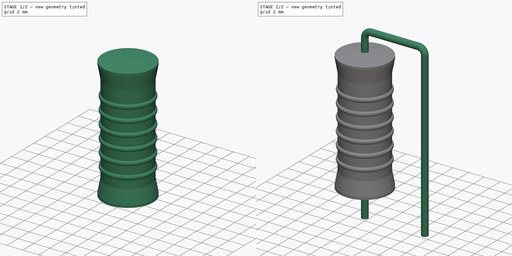
[diagram: build sequence overview — one tinted view per stage of 2, left to right]
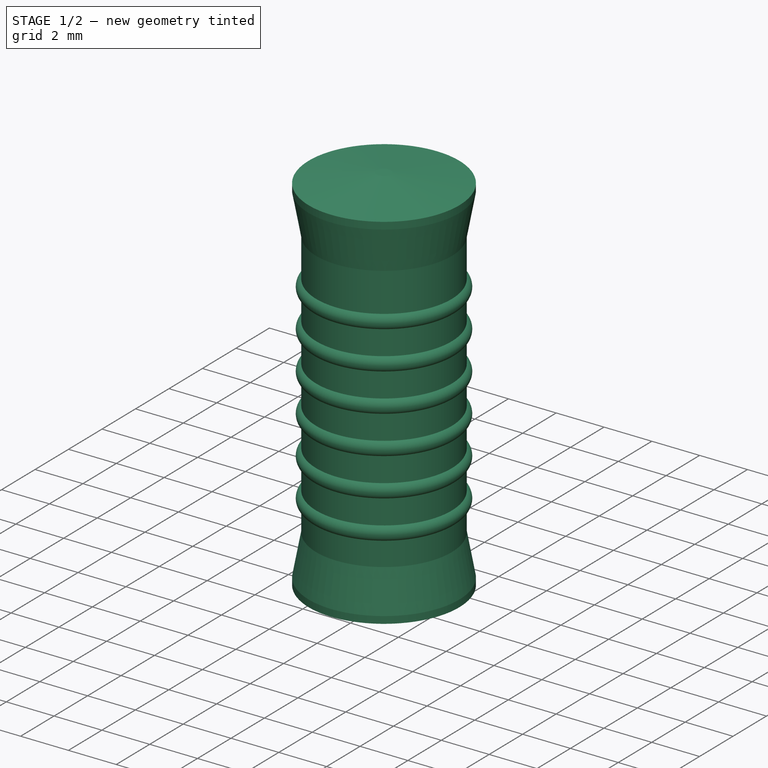
[diagram: stage 1 of 2 — iso view after this stage's code; geometry added in this stage tinted green]
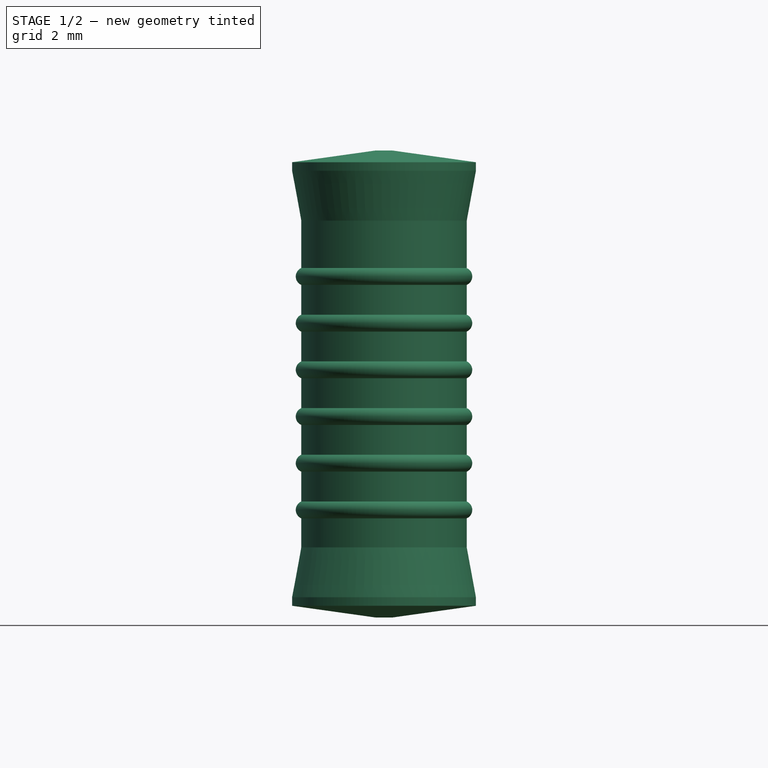
[diagram: stage 1 of 2 — front view after this stage's code; geometry added in this stage tinted green]
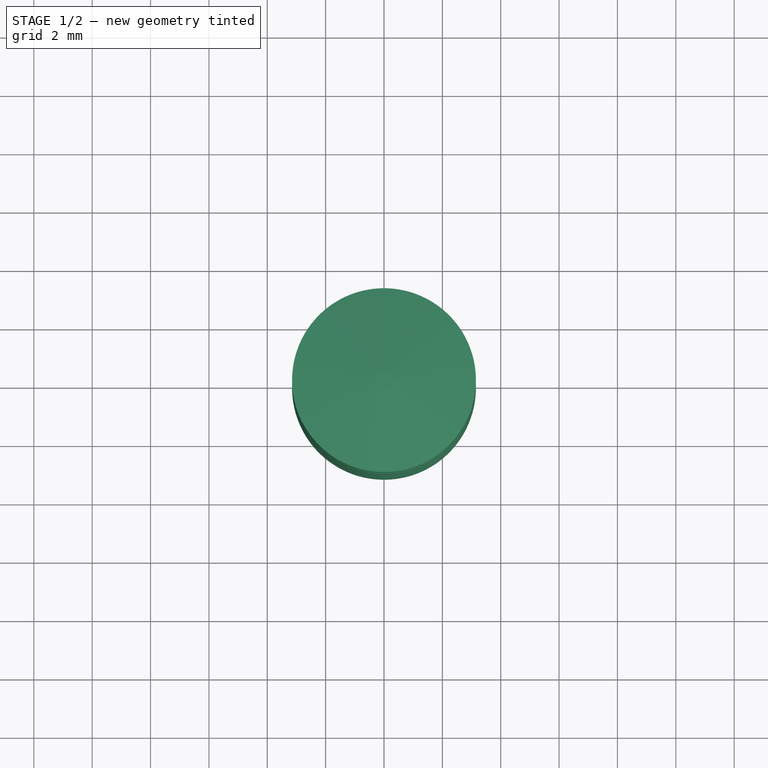
[diagram: stage 1 of 2 — top view after this stage's code; geometry added in this stage tinted green]
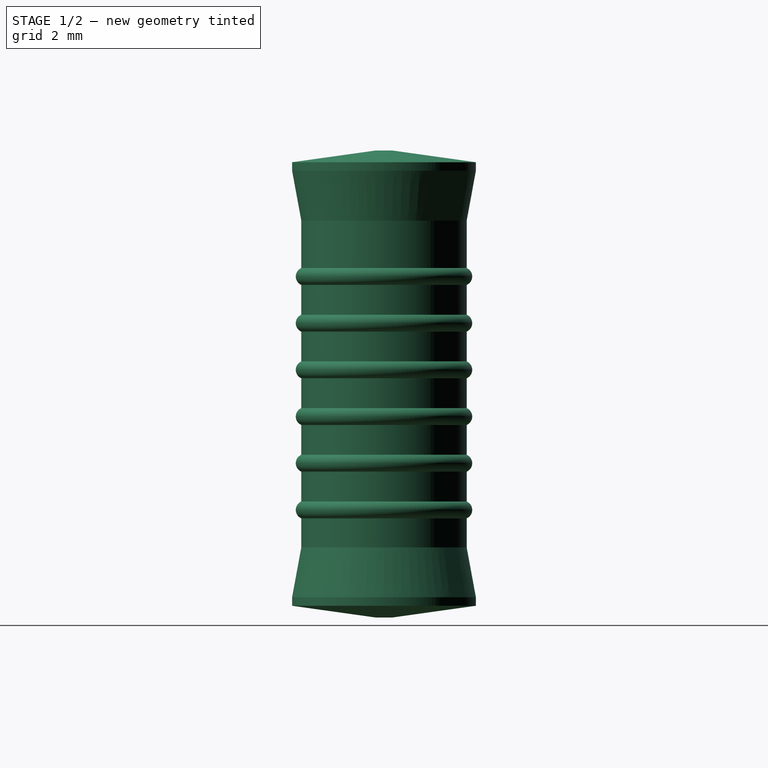
[diagram: stage 1 of 2 — right view after this stage's code; geometry added in this stage tinted green]
FCSTD DOCUMENT  (FreeCAD 0.16R6712 (Git))
Label: L_Axial_L16.0mm_D6.3mm_P7.62mm_Vertical_Fastron_VHBCC
License: All rights reserved
LicenseURL: http://en.wikipedia.org/wiki/All_rights_reserved
objects: Sketcher::SketchObject×4, PartDesign::Revolution×2, Spreadsheet::Sheet×1, Part::Sweep×1, Part::MultiFuse×1
note: 10 computed .brp shape members not serialized (recipe doc carries the construction recipe); baked Part::Feature solids carry a one-line shape summary decoded from their .brp

FEATURE [Sketcher::SketchObject] Sketch002
  Placement = pos=(0,0,0) rot=(1,0,0;1.5708rad)
  expr: Constraints[8] = 0.1
  expr: Constraints[13] = 0.15 * dimensions.L
  expr: Constraints[12] = dimensions.d * 0.45
  expr: Constraints[7] = dimensions.L
  expr: Constraints[21] = 0.025 * dimensions.L
  expr: Constraints[20] = 0.025 * dimensions.L
  expr: Constraints[11] = dimensions.L * 0.7
  expr: Constraints[9] = dimensions.d_wire / 2 * 0.75
  expr: Constraints[17] = dimensions.d / 2
  sketch-geometry (10):
    g0: LineSegment StartX=0 StartY=0.1 StartZ=0 EndX=0 EndY=16.1 EndZ=0
    g1: LineSegment StartX=0 StartY=16.1 StartZ=0 EndX=0.3 EndY=16.1 EndZ=0
    g2: LineSegment StartX=0 StartY=0.1 StartZ=0 EndX=0.3 EndY=0.1 EndZ=0
    g3: LineSegment StartX=2.835 StartY=13.7 StartZ=0 EndX=2.835 EndY=2.5 EndZ=0
    g4: LineSegment StartX=3.15 StartY=15.4075 StartZ=0 EndX=3.15 EndY=15.7 EndZ=0
    g5: LineSegment StartX=3.15 StartY=0.7925 StartZ=0 EndX=3.15 EndY=0.5 EndZ=0
    g6: LineSegment StartX=0.3 StartY=16.1 StartZ=0 EndX=3.15 EndY=15.7 EndZ=0
    g7: LineSegment StartX=0.3 StartY=0.1 StartZ=0 EndX=3.15 EndY=0.5 EndZ=0
    g8: LineSegment StartX=3.15 StartY=0.7925 StartZ=0 EndX=2.835 EndY=2.5 EndZ=0
    g9: LineSegment StartX=2.835 StartY=13.7 StartZ=0 EndX=3.15 EndY=15.4075 EndZ=0
  constraints (30):
    c: PointOnObject(g0,g-2)
    c: PointOnObject(g0,g-2)
    c: Coincident(g1,g0)
    c: Horizontal(g1)
    c: Coincident(g2,g0)
    c: Horizontal(g2)
    c: DistanceX(g2,g1) = 0
    c: DistanceY(g0,g0) = 16
    c: DistanceY(g-1,g0) = 0.1
    c: DistanceX(g1,g1) = 0.3
    c: Vertical(g3)
    c: DistanceY(g3,g3) = 11.2
    c: DistanceX(g0,g3) = 2.835
    c: DistanceY(g2,g3) = 2.4
    c: Vertical(g4)
    c: Vertical(g5)
    c: Equal(g5,g4)
    c: DistanceX(g0,g5) = 3.15
    c: DistanceY(g5,g5) = 0.2925
    c: DistanceX(g5,g4) = 0
    c: DistanceY(g0,g5) = 0.4
    c: DistanceY(g4,g1) = 0.4
    c: Coincident(g6,g1)
    c: Coincident(g6,g4)
    c: Coincident(g7,g2)
    c: Coincident(g7,g5)
    c: Coincident(g8,g5)
    c: Coincident(g8,g3)
    c: Coincident(g9,g3)
    c: Coincident(g9,g4)
FEATURE [PartDesign::Revolution] Revolution
  Angle = 360
  Axis = (0,0,1)
  Base = (0,0,0)
  Placement = pos=(0,0,0) rot=(1,0,0;1.5708rad)
  ReferenceAxis = -> Sketch002 [V_Axis]
  Reversed = true
  Sketch = -> Sketch002
FEATURE [Sketcher::SketchObject] Sketch003
  Placement = pos=(0,0,0) rot=(1,0,0;1.5708rad)
  expr: Constraints[1] = 0.1 + 0.15 * dimensions.L
  expr: Constraints[40] = dimensions.d * 0.05
  expr: Constraints[53] = (dimensions.L * 0.7 - 7 * dimensions.d * 0.05 * 2) / 7
  expr: Constraints[41] = dimensions.d * 0.05
  expr: Constraints[38] = dimensions.d * 0.05
  expr: Constraints[13] = dimensions.d * 0.05
  expr: Constraints[5] = dimensions.d * 0.03
  expr: Constraints[37] = dimensions.d * 0.05
  expr: Constraints[39] = dimensions.d * 0.05
  expr: Constraints[2] = dimensions.d * 0.4
  sketch-geometry (16):
    g0: LineSegment StartX=2.52 StartY=13.07 StartZ=0 EndX=2.52 EndY=2.5 EndZ=0
    g1: LineSegment StartX=2.52 StartY=2.5 StartZ=0 EndX=2.709 EndY=2.5 EndZ=0
    g2: LineSegment StartX=2.709 StartY=2.5 StartZ=0 EndX=2.709 EndY=3.47 EndZ=0
    g3: LineSegment StartX=2.709 StartY=4.1 StartZ=0 EndX=2.709 EndY=5.07 EndZ=0
    g4: ArcOfCircle CenterX=2.709 CenterY=3.785 CenterZ=0 NormalX=0 NormalY=0 NormalZ=1 Radius=0.315 StartAngle=4.71239 EndAngle=7.85398
    g5: ArcOfCircle CenterX=2.709 CenterY=5.385 CenterZ=0 NormalX=0 NormalY=0 NormalZ=1 Radius=0.315 StartAngle=4.71239 EndAngle=7.85398
    g6: LineSegment StartX=2.709 StartY=5.7 StartZ=0 EndX=2.709 EndY=6.67 EndZ=0
    g7: LineSegment StartX=2.709 StartY=7.3 StartZ=0 EndX=2.709 EndY=8.27 EndZ=0
    g8: LineSegment StartX=2.709 StartY=8.9 StartZ=0 EndX=2.709 EndY=9.87 EndZ=0
    g9: LineSegment StartX=2.709 StartY=10.5 StartZ=0 EndX=2.709 EndY=11.47 EndZ=0
    g10: ArcOfCircle CenterX=2.709 CenterY=11.785 CenterZ=0 NormalX=0 NormalY=0 NormalZ=1 Radius=0.315 StartAngle=4.71239 EndAngle=7.85398
    g11: ArcOfCircle CenterX=2.709 CenterY=10.185 CenterZ=0 NormalX=0 NormalY=0 NormalZ=1 Radius=0.315 StartAngle=4.71239 EndAngle=7.85398
    g12: ArcOfCircle CenterX=2.709 CenterY=8.585 CenterZ=0 NormalX=0 NormalY=0 NormalZ=1 Radius=0.315 StartAngle=4.71239 EndAngle=7.85398
    g13: ArcOfCircle CenterX=2.709 CenterY=6.985 CenterZ=0 NormalX=0 NormalY=0 NormalZ=1 Radius=0.315 StartAngle=4.71239 EndAngle=7.85398
    g14: LineSegment StartX=2.52 StartY=13.07 StartZ=0 EndX=2.709 EndY=13.07 EndZ=0
    g15: LineSegment StartX=2.709 StartY=13.07 StartZ=0 EndX=2.709 EndY=12.1 EndZ=0
  constraints (54):
    c: Vertical(g0)
    c: DistanceY(g-1,g0) = 2.5
    c: DistanceX(g-1,g0) = 2.52
    c: Coincident(g1,g0)
    c: Horizontal(g1)
    c: DistanceX(g1,g1) = 0.189
    c: Coincident(g2,g1)
    c: Vertical(g2)
    c: Vertical(g3)
    c: Coincident(g4,g3)
    c: Coincident(g4,g2)
    c: DistanceX(g2,g4) = 0
    c: DistanceX(g4,g3) = 0
    c: Radius(g4) = 0.315
    c: Coincident(g5,g3)
    c: DistanceX(g3,g5) = 0
    c: DistanceX(g5,g5) = 0
    c: Coincident(g6,g5)
    c: Vertical(g6)
    c: Vertical(g7)
    c: Vertical(g8)
    c: Vertical(g9)
    c: Coincident(g10,g9)
    c: DistanceX(g10,g10) = 0
    c: DistanceX(g9,g10) = 0
    c: Coincident(g11,g9)
    c: Coincident(g8,g11)
    c: DistanceX(g8,g11) = 0
    c: DistanceX(g9,g11) = 0
    c: Coincident(g12,g8)
    c: Coincident(g12,g7)
    c: DistanceX(g12,g8) = 0
    c: DistanceX(g7,g12) = 0
    c: Coincident(g13,g7)
    c: Coincident(g13,g6)
    c: DistanceX(g6,g13) = 0
    c: DistanceX(g13,g7) = 0
    c: Radius(g5) = 0.315
    c: Radius(g13) = 0.315
    c: Radius(g12) = 0.315
    c: Radius(g11) = 0.315
    c: Radius(g10) = 0.315
    c: Equal(g9,g8)
    c: Equal(g8,g7)
    c: Equal(g7,g6)
    c: Equal(g6,g3)
    c: Equal(g3,g2)
    c: Coincident(g14,g0)
    c: Horizontal(g14)
    c: Coincident(g15,g10)
    c: Vertical(g15)
    c: Coincident(g14,g15)
    c: Equal(g15,g9)
    c: DistanceY(g9,g9) = 0.97
FEATURE [PartDesign::Revolution] Revolution001
  Angle = 360
  Axis = (0,0,1)
  Base = (0,0,0)
  Placement = pos=(0,0,0) rot=(1,0,0;1.5708rad)
  ReferenceAxis = -> Sketch003 [V_Axis]
  Reversed = true
  Sketch = -> Sketch003
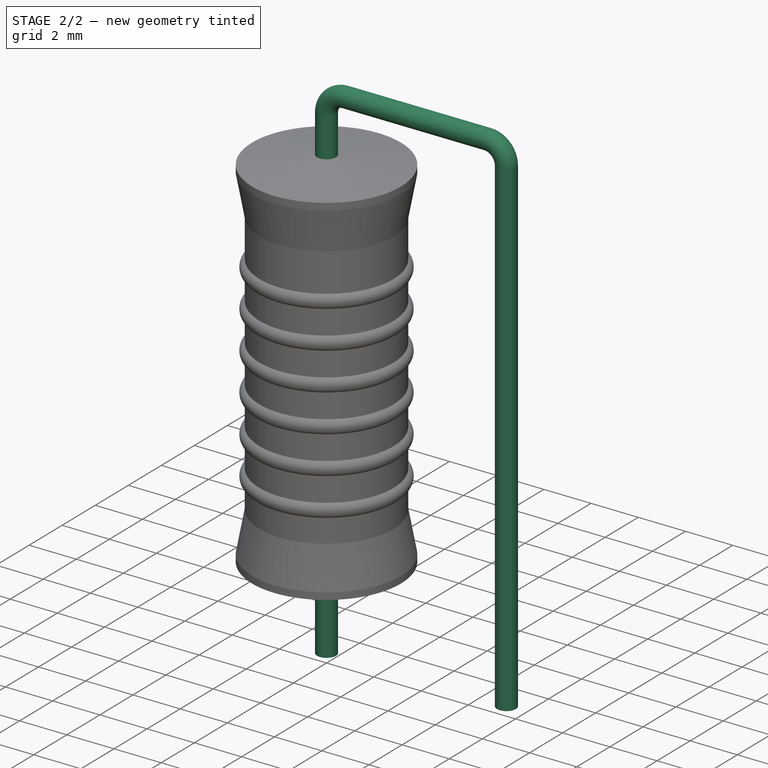
[diagram: stage 2 of 2 — iso view after this stage's code; geometry added in this stage tinted green]
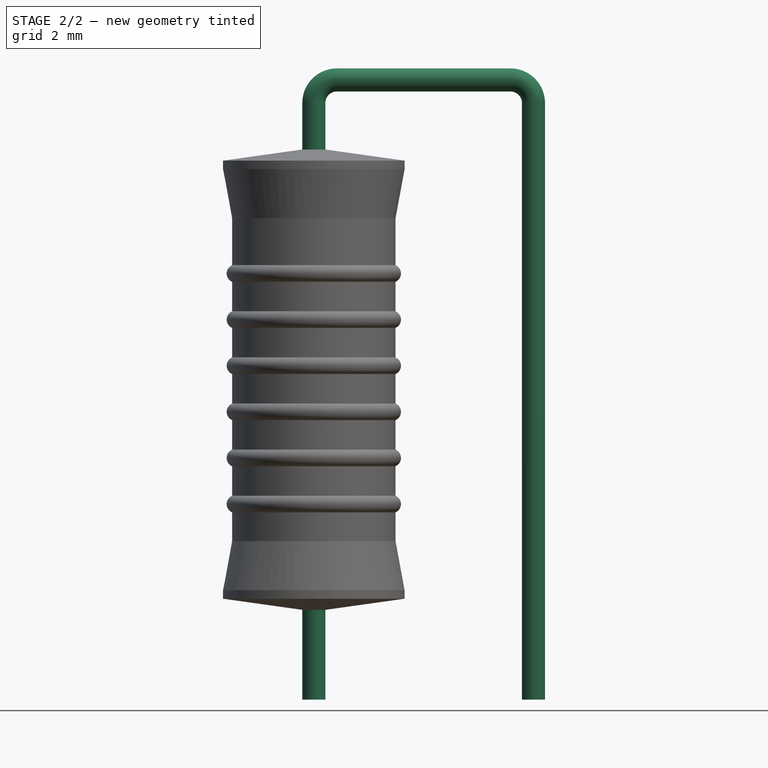
[diagram: stage 2 of 2 — front view after this stage's code; geometry added in this stage tinted green]
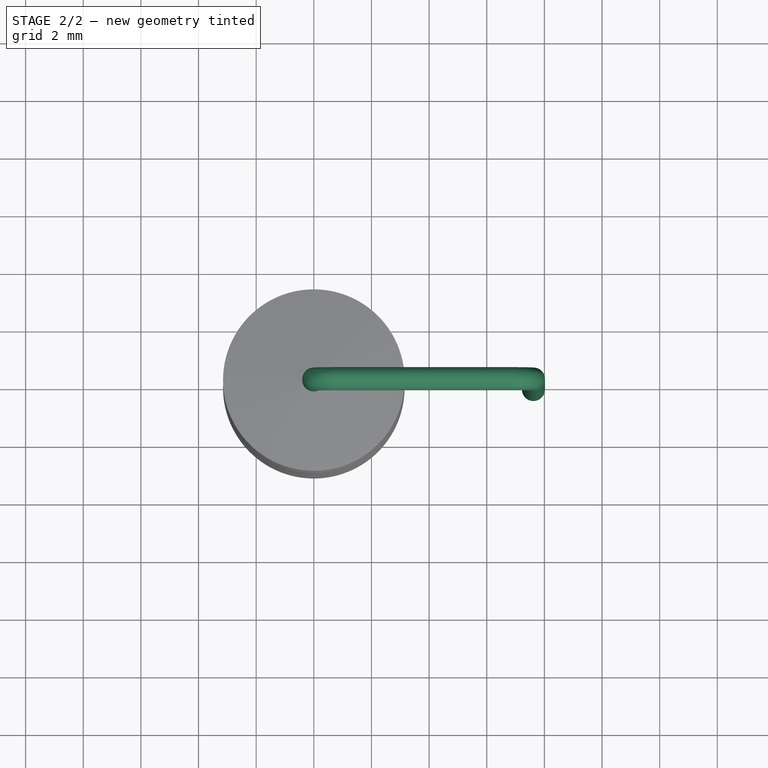
[diagram: stage 2 of 2 — top view after this stage's code; geometry added in this stage tinted green]
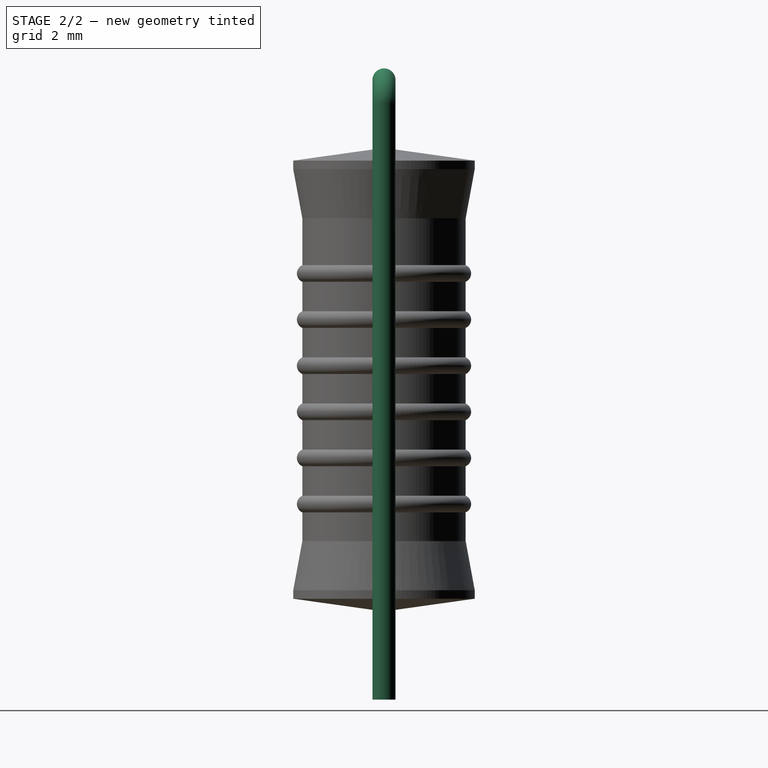
[diagram: stage 2 of 2 — right view after this stage's code; geometry added in this stage tinted green]
FEATURE [Sketcher::SketchObject] Sketch001
  Placement = pos=(0,0,0) rot=(1,0,0;1.5708rad)
  expr: Constraints[18] = dimensions.d_wire
  expr: Constraints[16] = dimensions.L + 3 * dimensions.d_wire + 0.1
  expr: Constraints[21] = dimensions.L + 2 * dimensions.d_wire + 0.1
  expr: Constraints[11] = dimensions.RM
  sketch-geometry (7):
    g0: LineSegment StartX=0 StartY=-3 StartZ=0 EndX=0 EndY=17.7 EndZ=0
    g1: ArcOfCircle CenterX=0.8 CenterY=17.7 CenterZ=0 NormalX=0 NormalY=0 NormalZ=1 Radius=0.8 StartAngle=1.5708 EndAngle=3.14159
    g2: LineSegment [constr] StartX=0 StartY=17.7 StartZ=0 EndX=0.8 EndY=17.7 EndZ=0
    g3: LineSegment [constr] StartX=0.8 StartY=17.7 StartZ=0 EndX=0.8 EndY=26.8 EndZ=0
    g4: LineSegment StartX=0.799993 StartY=18.5 StartZ=0 EndX=6.82 EndY=18.5 EndZ=0
    g5: LineSegment StartX=7.62 StartY=17.7 StartZ=0 EndX=7.62 EndY=-3 EndZ=0
    g6: ArcOfCircle CenterX=6.82 CenterY=17.7 CenterZ=0 NormalX=0 NormalY=0 NormalZ=1 Radius=0.8 StartAngle=0 EndAngle=1.5708
  constraints (22):
    c: Vertical(g0)
    c: Coincident(g1,g0)
    c: Coincident(g2,g0)
    c: Coincident(g2,g1)
    c: Horizontal(g2)
    c: Coincident(g3,g1)
    c: Vertical(g3)
    c: Coincident(g4,g1)
    c: Horizontal(g4)
    c: Vertical(g5)
    c: Equal(g5,g0)
    c: DistanceX(g-1,g5) = 7.62
    c: Coincident(g6,g4)
    c: Coincident(g6,g5)
    c: PointOnObject(g0,g-2)
    c: DistanceY(g0,g-1) = 3
    c: DistanceY(g-1,g1) = 18.5
    c: DistanceY(g0,g5) = 0
    c: DistanceX(g0,g1) = 0.8
    c: DistanceX(g6,g4) = 0
    c: DistanceY(g6,g5) = 0
    c: DistanceY(g-1,g0) = 17.7
FEATURE [Spreadsheet::Sheet] Spreadsheet  label="dimensions"
  cells = A1=L; B1(L)=16; A2=d; B2(d)=6.3; C2=0; A3=RM; B3(RM)=7.62; A4=d_wire; B4(d_wire)=0.8
FEATURE [Sketcher::SketchObject] Sketch
  Placement = pos=(0,0,-2) rot=(0,0,1;0rad)
  expr: Constraints[1] = dimensions.d_wire / 2
  sketch-geometry (1):
    g0: Circle CenterX=0 CenterY=0 CenterZ=0 NormalX=0 NormalY=0 NormalZ=1 Radius=0.4
  constraints (2):
    c: Coincident(g0,g-1)
    c: Radius(g0) = 0.4
FEATURE [Part::Sweep] Sweep
  Frenet = false
  Sections = -> [Sketch]
  Solid = true
  Spine = -> Sketch001
  Transition = 1
FEATURE [Part::MultiFuse] Revolution001_mp_cp  label="L_Axial_L16.0mm_D6.3mm_P7.62mm_Vertical_Fastron_VHBCC"
  Shapes = -> [Revolution001,Revolution,Sweep]
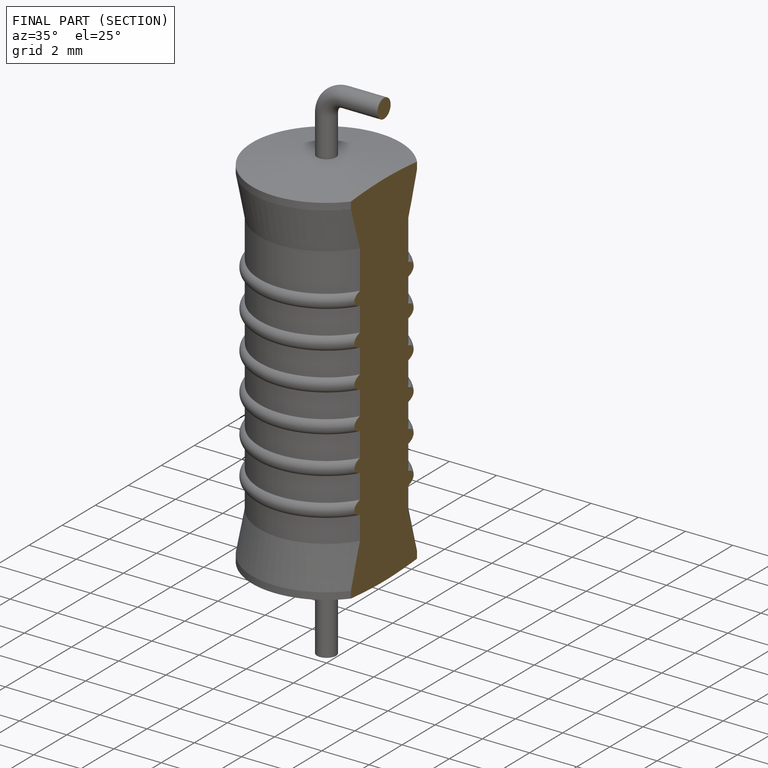
[diagram: finished part — half-section view (interior)]
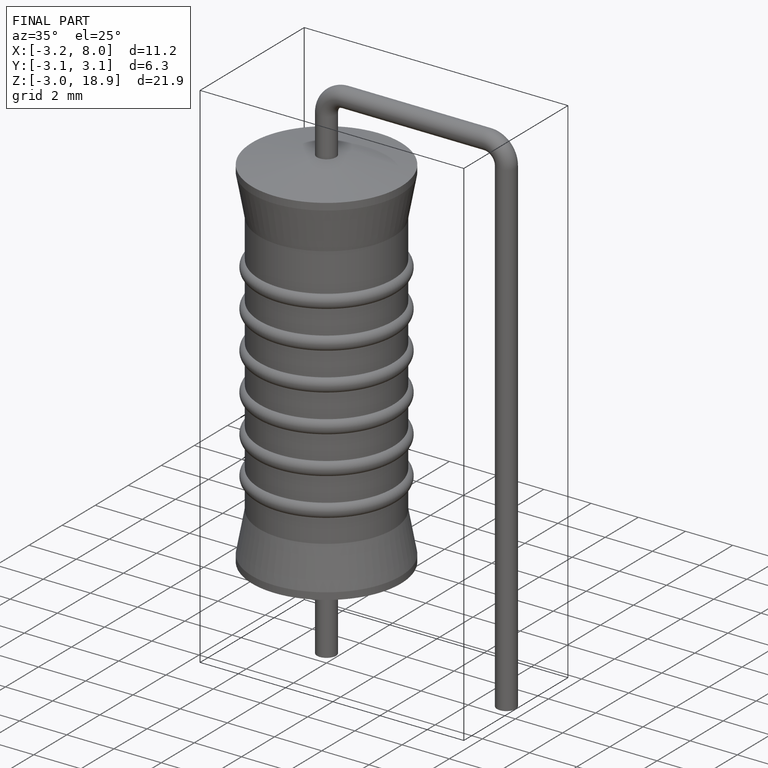
[diagram: finished part — iso view with bounding-box wireframe]
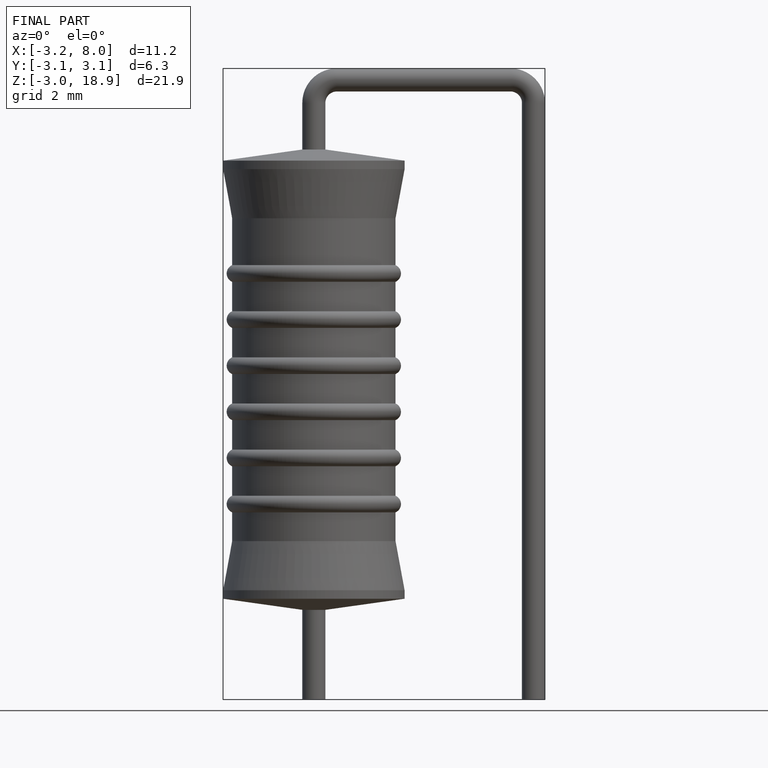
[diagram: finished part — front view with bounding-box wireframe]
